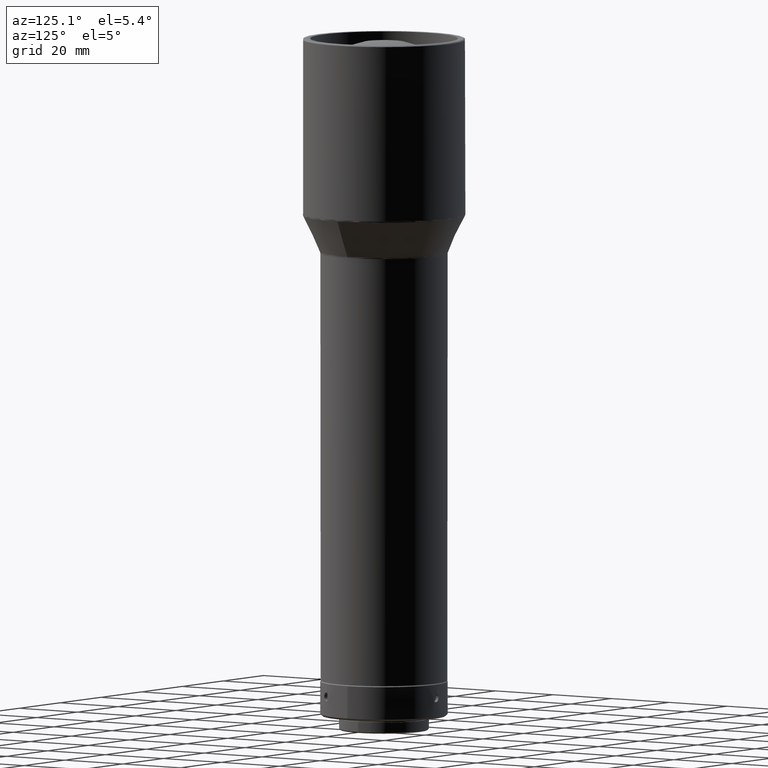
[diagram: clean part render]
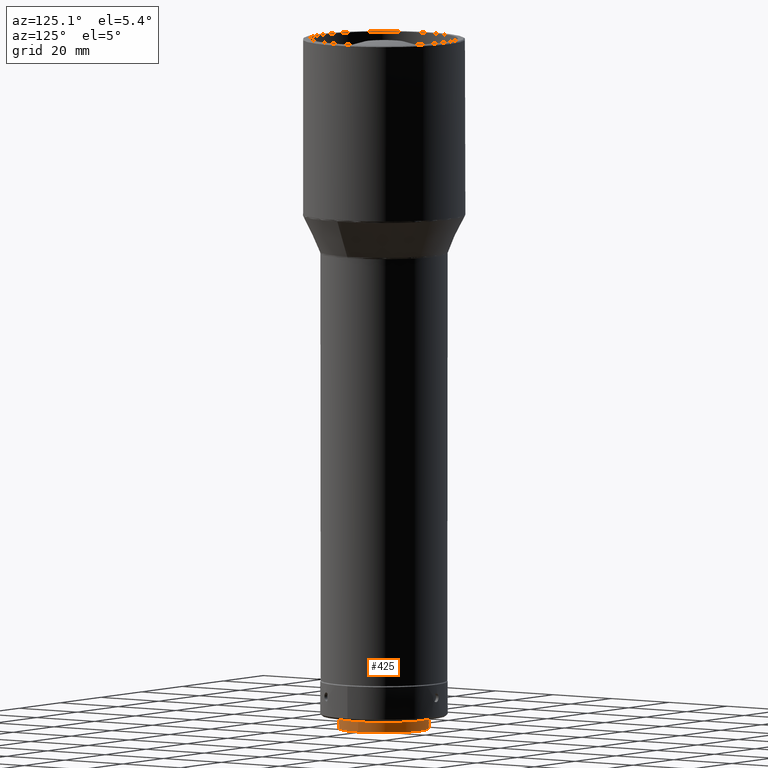
[diagram: same view with one face highlighted and labeled with its STEP entity id]
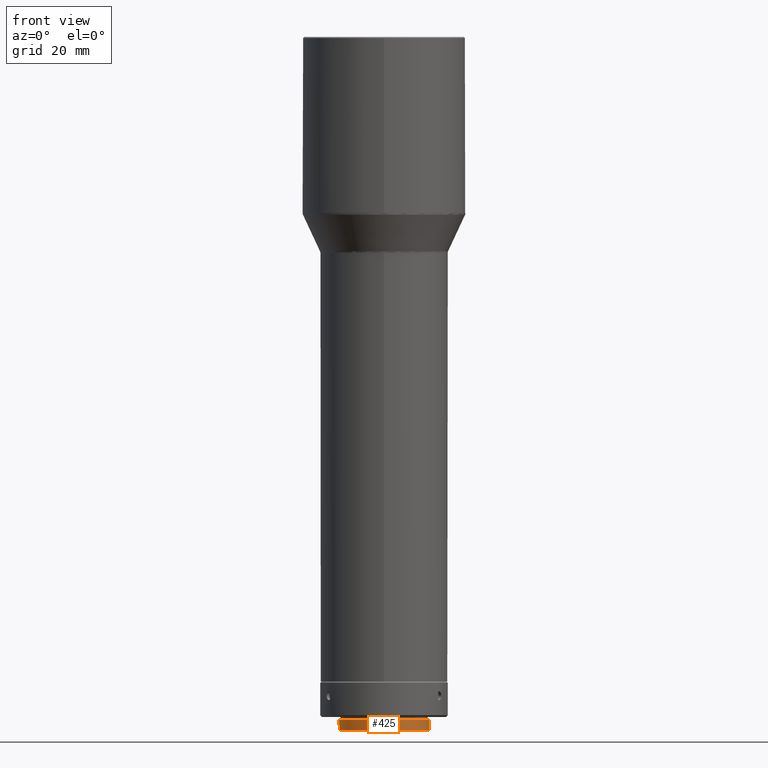
[diagram: same view with one face highlighted and labeled with its STEP entity id]
A machine part, auxiliary view. The second image highlights one B-rep face of the part: STEP entity #425.
A second angle (front view) of the same face is appended — the face is thin or edge-on in the first view.
In plain terms, the highlighted cylindrical surface (bore or boss wall) has radius 12.7 mm, axis along (0, 0, 1).
Its self-contained STEP definition (entity closure, byte-faithful):
#64 = CARTESIAN_POINT ( 'NONE',  ( -7.702630993699205639E-31, -1.295151956456359438E-32, -792.0835279999998875 ) ) ;
#70 = DIRECTION ( 'NONE',  ( 1.000000000000000000, 0.000000000000000000, 0.000000000000000000 ) ) ;
#132 = DIRECTION ( 'NONE',  ( 0.000000000000000000, 0.000000000000000000, 1.000000000000000000 ) ) ;
#155 = EDGE_LOOP ( 'NONE', ( #168 ) ) ;
#168 = ORIENTED_EDGE ( 'NONE', *, *, #487, .T. ) ;
#247 = CIRCLE ( 'NONE', #454, 12.69999999999999751 ) ;
#270 = CARTESIAN_POINT ( 'NONE',  ( -7.702630993699205639E-31, -1.295151956456359438E-32, -802.8835279999999557 ) ) ;
#271 = VERTEX_POINT ( 'NONE', #648 ) ;
#314 = DIRECTION ( 'NONE',  ( -0.000000000000000000, -0.000000000000000000, -1.000000000000000000 ) ) ;
#318 = DIRECTION ( 'NONE',  ( 1.000000000000000000, 0.000000000000000000, 0.000000000000000000 ) ) ;
#340 = CIRCLE ( 'NONE', #556, 12.69999999999999751 ) ;
#370 = FACE_OUTER_BOUND ( 'NONE', #565, .T. ) ;
#373 = CYLINDRICAL_SURFACE ( 'NONE', #796, 12.69999999999999751 ) ;
#425 = ADVANCED_FACE ( 'NONE', ( #685, #370 ), #373, .T. ) ;
#445 = EDGE_CURVE ( 'NONE', #271, #271, #340, .T. ) ;
#451 = DIRECTION ( 'NONE',  ( 1.000000000000000000, 0.000000000000000000, 0.000000000000000000 ) ) ;
#454 = AXIS2_PLACEMENT_3D ( 'NONE', #270, #314, #318 ) ;
#465 = ORIENTED_EDGE ( 'NONE', *, *, #445, .T. ) ;
#487 = EDGE_CURVE ( 'NONE', #706, #706, #247, .T. ) ;
#519 = CARTESIAN_POINT ( 'NONE',  ( 12.69999999999999751, -1.295151956456359438E-32, -802.8835279999999557 ) ) ;
#556 = AXIS2_PLACEMENT_3D ( 'NONE', #693, #132, #451 ) ;
#565 = EDGE_LOOP ( 'NONE', ( #465 ) ) ;
#627 = DIRECTION ( 'NONE',  ( 0.000000000000000000, 0.000000000000000000, 1.000000000000000000 ) ) ;
#648 = CARTESIAN_POINT ( 'NONE',  ( 12.69999999999999751, -1.295151956456359438E-32, -805.7835279999999329 ) ) ;
#685 = FACE_OUTER_BOUND ( 'NONE', #155, .T. ) ;
#693 = CARTESIAN_POINT ( 'NONE',  ( -7.702630993699205639E-31, -1.295151956456359438E-32, -805.7835279999999329 ) ) ;
#706 = VERTEX_POINT ( 'NONE', #519 ) ;
#796 = AXIS2_PLACEMENT_3D ( 'NONE', #64, #627, #70 ) ;